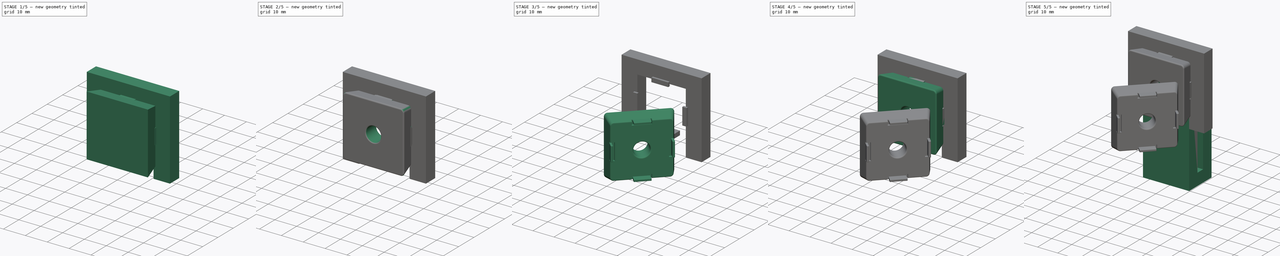
[diagram: build sequence overview — one tinted view per stage of 5, left to right]
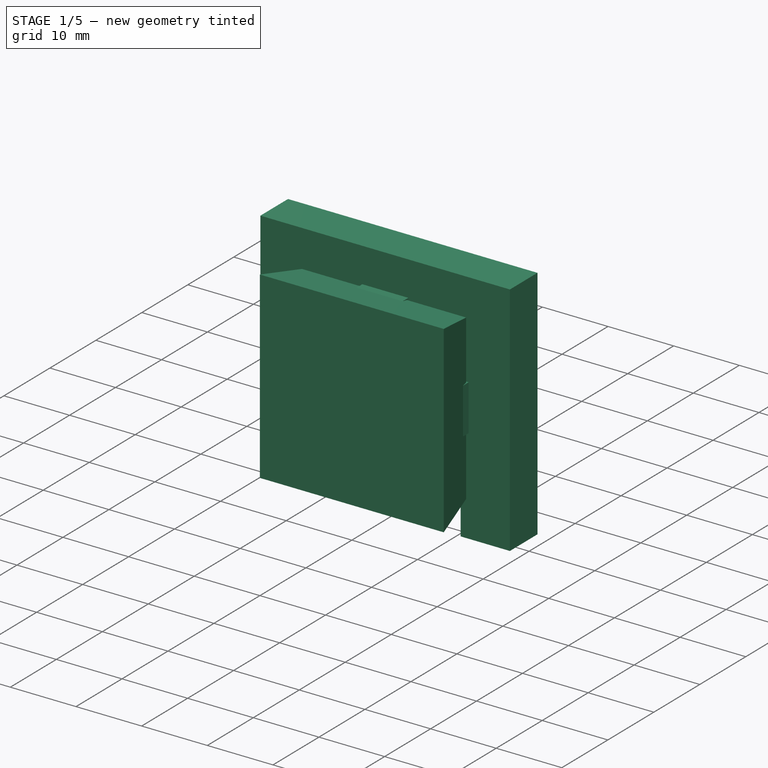
[diagram: stage 1 of 5 — iso view after this stage's code; geometry added in this stage tinted green]
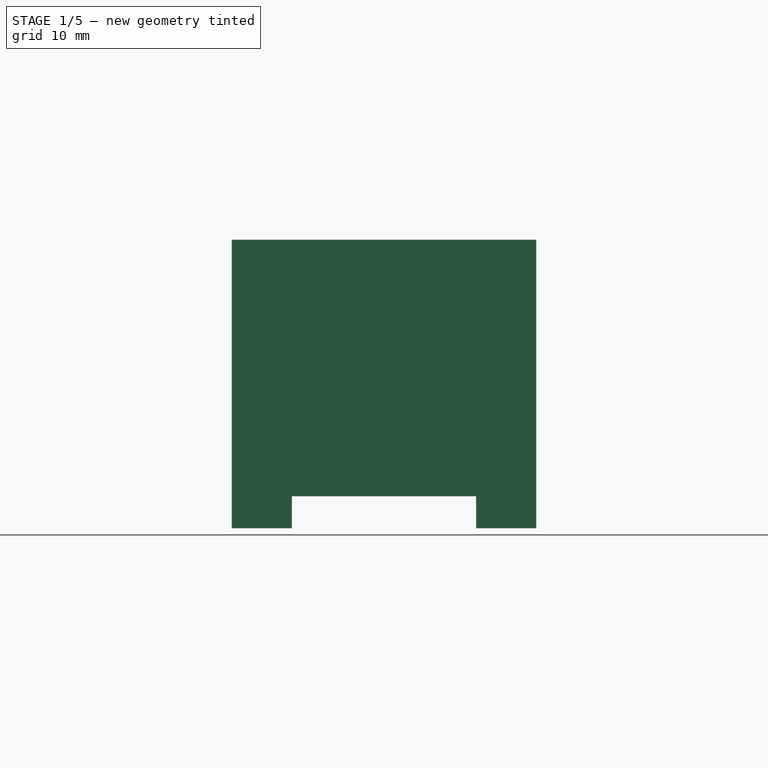
[diagram: stage 1 of 5 — front view after this stage's code; geometry added in this stage tinted green]
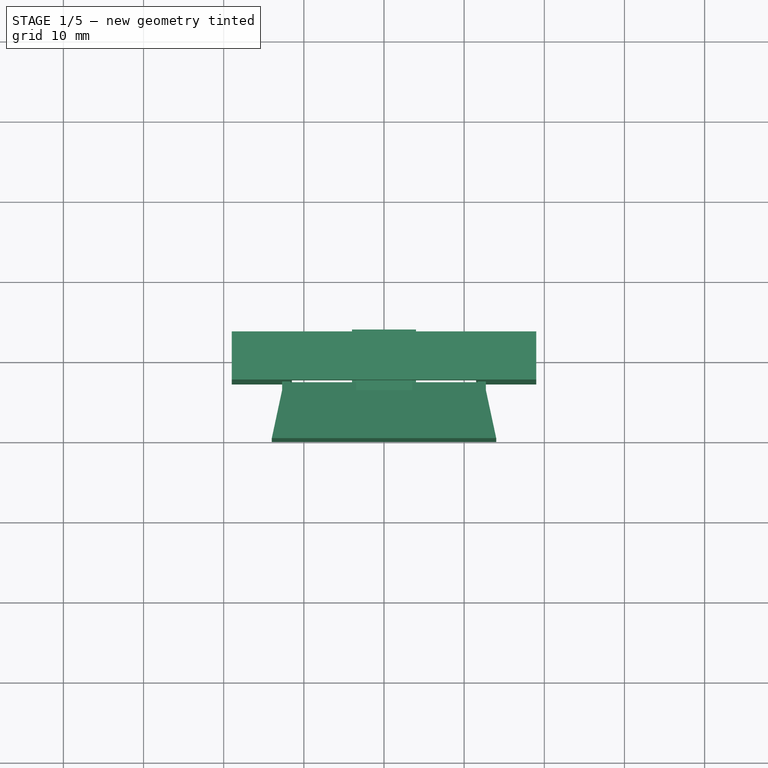
[diagram: stage 1 of 5 — top view after this stage's code; geometry added in this stage tinted green]
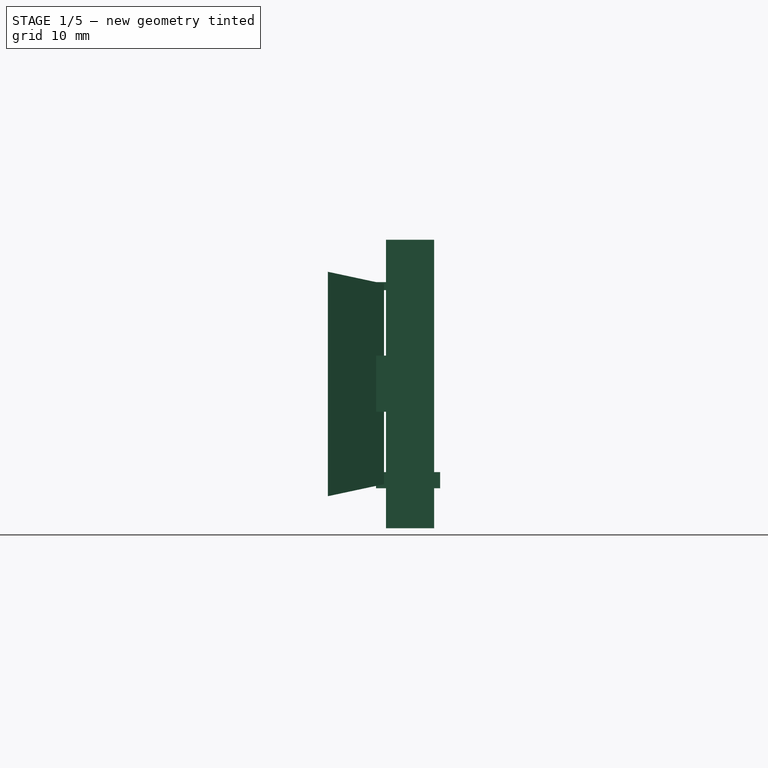
[diagram: stage 1 of 5 — right view after this stage's code; geometry added in this stage tinted green]
FCSTD DOCUMENT  (FreeCAD 1.0R39109 (Git))
Label: T-slot_Mount
License: All rights reserved
LicenseURL: https://en.wikipedia.org/wiki/All_rights_reserved
objects: Part::Box×21, Part::Feature×10, Part::MultiFuse×7, Part::Cut×6, Part::Fillet×4, Part::Cylinder×3, Part::Wedge×2, App::Part×2, Sketcher::SketchObject×1, Part::Extrusion×1
note: 56 computed .brp shape members not serialized (recipe doc carries the construction recipe); baked Part::Feature solids carry a one-line shape summary decoded from their .brp

FEATURE [Part::Box] Box014  label="Cube014"
  AttacherType = Attacher::AttachEngine3D
  Height = 1
  Length = 7
  Placement = pos=(-3.48,6,11.71) rot=(0,0,1;0rad)
  Width = 3
FEATURE [Part::Box] Box015  label="Cube015"
  AttacherType = Attacher::AttachEngine3D
  Height = 1
  Length = 7
  Placement = pos=(-3.48,6,-12.71) rot=(0,0,1;0rad)
  Width = 3
FEATURE [Part::Box] Box016  label="Cube016"
  AttacherType = Attacher::AttachEngine3D
  Height = 1
  Length = 7
  Placement = pos=(-11.71,6,-3.46) rot=(0,1,0;4.71239rad)
  Width = 3
FEATURE [Part::Box] Box017  label="Cube017"
  AttacherType = Attacher::AttachEngine3D
  Height = 1
  Length = 7
  Placement = pos=(12.71,6,-3.46) rot=(0,1,0;4.71239rad)
  Width = 3
FEATURE [Part::Wedge] Wedge001
  AttacherType = Attacher::AttachEngine3D
  X2max = 12.5
  X2min = -12.5
  Xmax = 14
  Xmin = -14
  Ymax = 7
  Ymin = 0
  Z2max = 12.5
  Z2min = -12.5
  Zmax = 14
  Zmin = -14
FEATURE [Part::Feature] Part__Feature011  label="4658N12_T-Slotted Framing Rail"
  Placement = pos=(-124.097,-138.946,0) rot=(0,0,1;3.92699rad)
  shape: bbox 233.5 x 233.5 x 25.4 mm, 88 faces (baked)
FEATURE [Part::Feature] Part__Feature012  label="47065T221_T-Slotted Framing"
  shape: bbox 4.244 x 18.55 x 18.55 mm, 11 faces (baked)
FEATURE [Part::Feature] Part__Feature013  label="47065T221_T-Slotted Framing001"
  shape: bbox 32.39 x 7.001 x 7.001 mm, 34 faces (baked)
FEATURE [Part::Feature] Part__Feature014  label="47065T221_T-Slotted Framing002"
  shape: bbox 28.04 x 41.2 x 41.2 mm, 176 faces (baked)
FEATURE [Part::Feature] Part__Feature015  label="47065T221_T-Slotted Framing003"
  shape: bbox 30.14 x 35.23 x 50.07 mm, 166 faces (baked)
FEATURE [Part::Feature] Part__Feature016  label="47065T221_T-Slotted Framing004"
  shape: bbox 28.04 x 39.65 x 30.31 mm, 176 faces (baked)
FEATURE [Part::Feature] Part__Feature017  label="47065T221_T-Slotted Framing005"
  shape: bbox 4.244 x 18.55 x 18.55 mm, 11 faces (baked)
FEATURE [Part::Feature] Part__Feature018  label="47065T221_T-Slotted Framing006"
  shape: bbox 0.35 x 21.6 x 21.6 mm, 6 faces (baked)
FEATURE [Part::Feature] Part__Feature019  label="47065T221_T-Slotted Framing007"
  shape: bbox 0.35 x 21.6 x 21.6 mm, 6 faces (baked)
FEATURE [Part::Feature] Part__Feature020  label="47065T221_T-Slotted Framing008"
  shape: bbox 8.33 x 10.18 x 10.18 mm, 26 faces (baked)
FEATURE [App::Part] _7065T221_T_Slotted_Framing  label="47065T221_T-Slotted Framing009"
  Group = -> [Part__Feature012,Part__Feature013,Part__Feature014,Part__Feature015,Part__Feature016,Part__Feature017,Part__Feature018,Part__Feature019,Part__Feature020]
  Origin = -> Origin002
  Placement = pos=(-1.8e-15,-15,0) rot=(-0.707107,0,-0.707107;3.14159rad)
FEATURE [App::Part] Part  label="Tslot"
  Group = -> [Cut001,Fusion002,Fillet,Cut,Box001,Box004,Box003,Box007,Box002,Box005,Box006,Fusion001,Wedge,Cylinder,Box,Fusion,Fillet001,Cut003,Fusion004,Fillet003,Cut004,Fusion006,Fusion005,Cylinder002,Wedge001,Box012,Box010,Box011,Box014,Box017,Box013,Box016,Box015,Fillet004,Part__Feature011,_7065T221_T_Slotted_Framing]
  Origin = -> Origin001
FEATURE [Part::Box] Box018  label="Cube018"
  AttacherType = Attacher::AttachEngine3D
  Height = 36
  Length = 38
  Placement = pos=(-19,7.25,-18) rot=(0,0,1;0rad)
  Width = 6
FEATURE [Part::Box] Box019  label="Cube019"
  AttacherType = Attacher::AttachEngine3D
  Height = 29.5
  Length = 23
  Placement = pos=(-11.5,7.25,-18) rot=(0,0,1;0rad)
  Width = 6
FEATURE [Part::Cut] Cut005
  Base = -> Box018
  Refine = true
  Tool = -> Box019
FEATURE [Part::Box] Box020  label="Cube020"
  AttacherType = Attacher::AttachEngine3D
  Height = 2
  Length = 8
  Placement = pos=(-4,6,-13) rot=(0,0,1;0rad)
  Width = 8
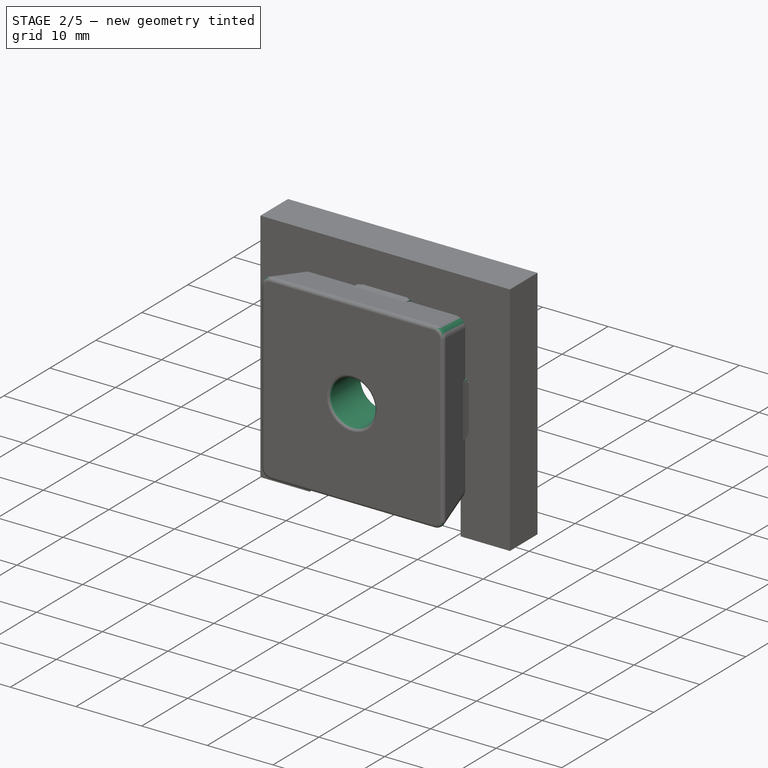
[diagram: stage 2 of 5 — iso view after this stage's code; geometry added in this stage tinted green]
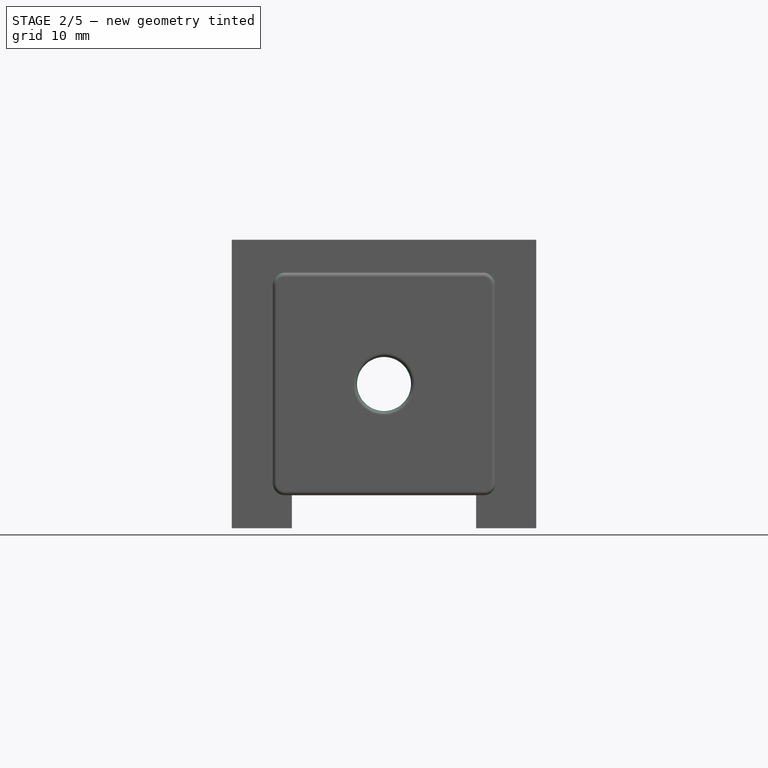
[diagram: stage 2 of 5 — front view after this stage's code; geometry added in this stage tinted green]
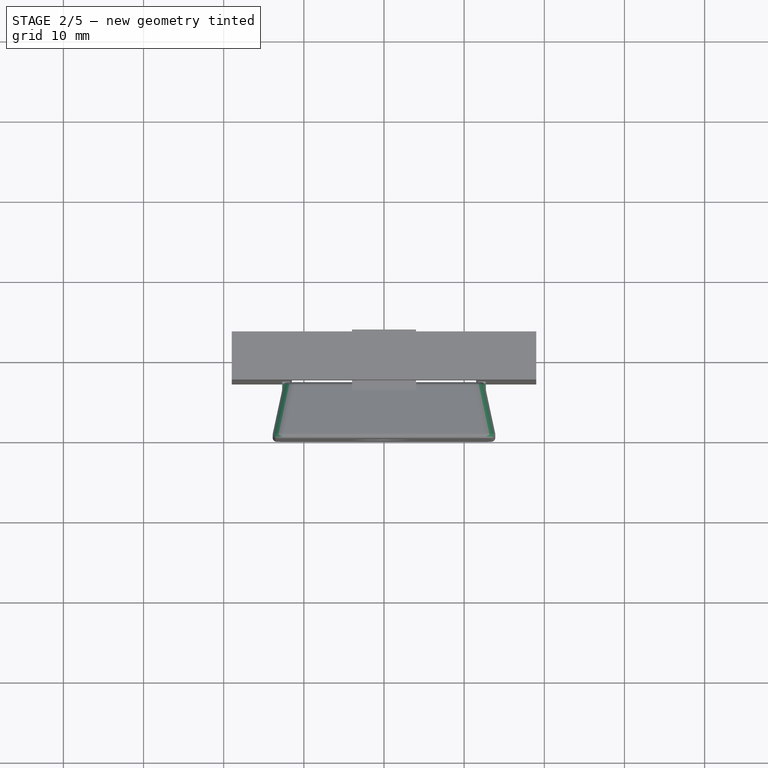
[diagram: stage 2 of 5 — top view after this stage's code; geometry added in this stage tinted green]
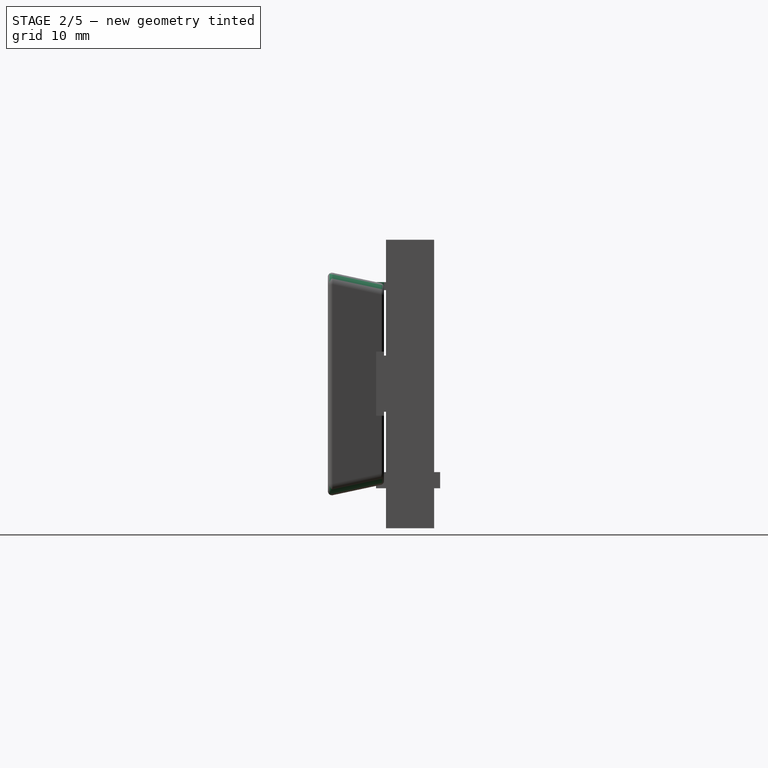
[diagram: stage 2 of 5 — right view after this stage's code; geometry added in this stage tinted green]
FEATURE [Part::Box] Box010  label="Cube010"
  AttacherType = Attacher::AttachEngine3D
  Height = 2
  Length = 8
  Placement = pos=(-3.98,6,10.71) rot=(0,0,1;0rad)
  Width = 1
FEATURE [Part::Box] Box011  label="Cube011"
  AttacherType = Attacher::AttachEngine3D
  Height = 2
  Length = 8
  Placement = pos=(-3.98,6,-12.71) rot=(0,0,1;0rad)
  Width = 1
FEATURE [Part::Box] Box012  label="Cube012"
  AttacherType = Attacher::AttachEngine3D
  Height = 2
  Length = 8
  Placement = pos=(-10.71,6,-3.96) rot=(0,1,0;4.71239rad)
  Width = 1
FEATURE [Part::Box] Box013  label="Cube013"
  AttacherType = Attacher::AttachEngine3D
  Height = 2
  Length = 8
  Placement = pos=(12.71,6,-3.96) rot=(0,1,0;4.71239rad)
  Width = 1
FEATURE [Part::Cylinder] Cylinder002
  Angle = 360
  AttacherType = Attacher::AttachEngine3D
  FirstAngle = 0
  Height = 10
  Placement = pos=(0,8,1.8e-15) rot=(1,0,0;1.5708rad)
  Radius = 3.3725
  SecondAngle = 0
FEATURE [Part::MultiFuse] Fusion004  label="Gap001"
  Refine = true
  Shapes = -> [Box010,Box011,Box012,Box013]
FEATURE [Part::MultiFuse] Fusion005  label="extensions001"
  Refine = true
  Shapes = -> [Box014,Box015,Box016,Box017]
FEATURE [Part::Cut] Cut003  label="Slot_Base001"
  Base = -> Wedge001
  Refine = true
  Tool = -> Cylinder002
FEATURE [Part::Fillet] Fillet003
  Base = -> Cut003
  EdgeLinks = -> Cut003 [Edge1,Edge2,Edge3,Edge4,Edge5,Edge6,Edge7,Edge8,Edge9,Edge10,Edge11,Edge12,Edge13,Edge14]
  Edges = 14 edges: [Edge1 r=0.5,Edge2 r=1.5,Edge3 r=0.5,Edge4 r=1.5,Edge5 r=0.5,Edge6 r=0.5,Edge7 r=0.5,Edge8 r=0.5,Edge9 r=0.5,Edge10 r=1.5,Edge11 r=0.5,Edge12 r=0.5,Edge13 r=0.5,Edge14 r=1.5]
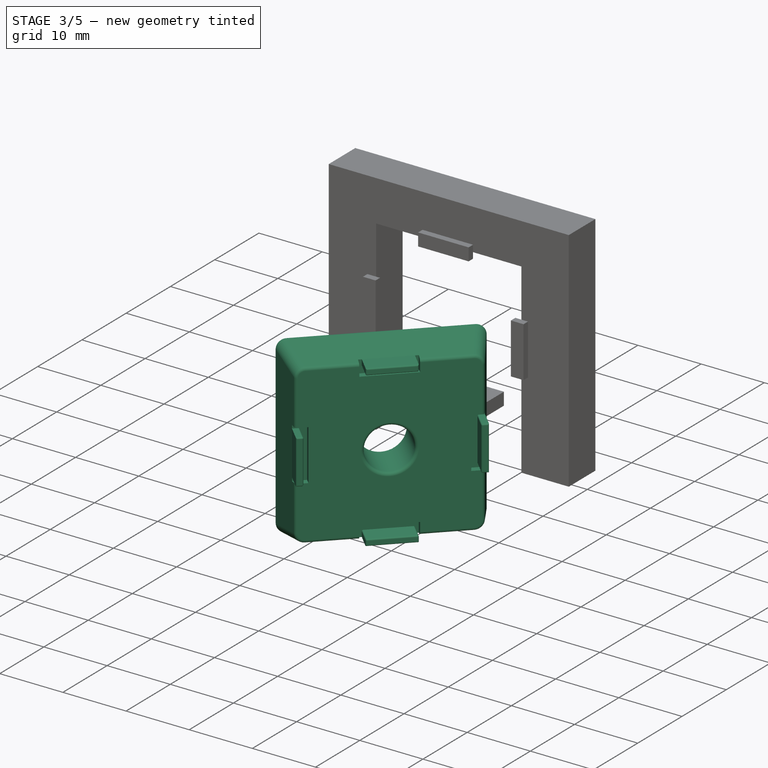
[diagram: stage 3 of 5 — iso view after this stage's code; geometry added in this stage tinted green]
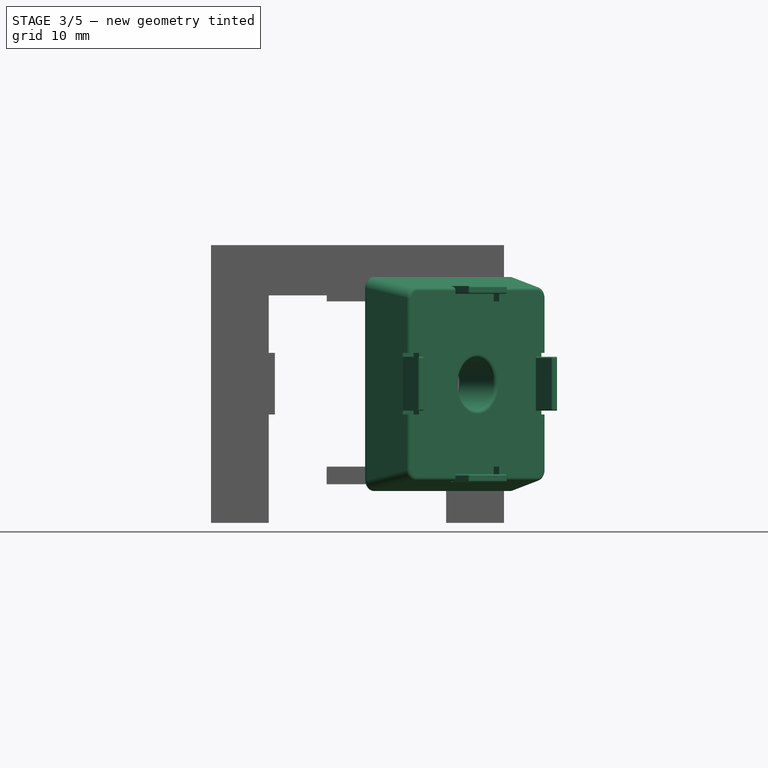
[diagram: stage 3 of 5 — front view after this stage's code; geometry added in this stage tinted green]
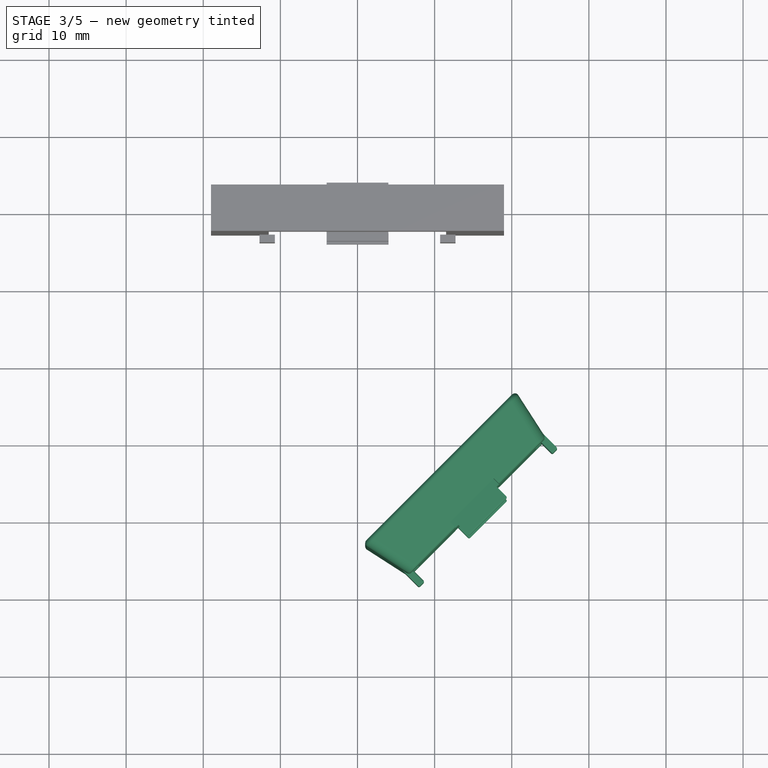
[diagram: stage 3 of 5 — top view after this stage's code; geometry added in this stage tinted green]
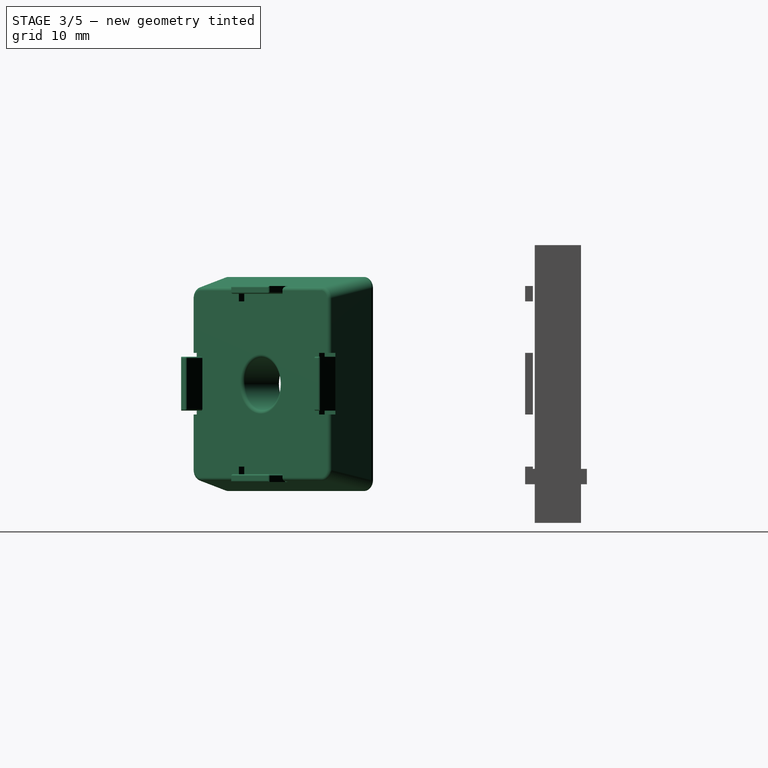
[diagram: stage 3 of 5 — right view after this stage's code; geometry added in this stage tinted green]
FEATURE [Part::Box] Box  label="Cube"
  AttacherType = Attacher::AttachEngine3D
  Height = 2
  Length = 8
  Placement = pos=(-3.98,6,10.71) rot=(0,0,1;0rad)
  Width = 1
FEATURE [Part::Box] Box001  label="Cube001"
  AttacherType = Attacher::AttachEngine3D
  Height = 2
  Length = 8
  Placement = pos=(-3.98,6,-12.71) rot=(0,0,1;0rad)
  Width = 1
FEATURE [Part::Box] Box002  label="Cube002"
  AttacherType = Attacher::AttachEngine3D
  Height = 2
  Length = 8
  Placement = pos=(-10.71,6,-3.96) rot=(0,1,0;4.71239rad)
  Width = 1
FEATURE [Part::Box] Box003  label="Cube003"
  AttacherType = Attacher::AttachEngine3D
  Height = 2
  Length = 8
  Placement = pos=(12.71,6,-3.96) rot=(0,1,0;4.71239rad)
  Width = 1
FEATURE [Part::MultiFuse] Fusion  label="Gap"
  Refine = true
  Shapes = -> [Box,Box001,Box002,Box003]
FEATURE [Part::Cut] Cut004
  Base = -> Fillet003
  Refine = true
  Tool = -> Fusion004
FEATURE [Part::MultiFuse] Fusion006  label="Mount_Base001"
  Refine = true
  Shapes = -> [Fusion005,Cut004]
FEATURE [Part::Fillet] Fillet004  label="Base001"
  Base = -> Fusion006
  EdgeLinks = -> Fusion006 [Edge4,Edge5,Edge15,Edge18,Edge19,Edge20,Edge173,Edge177,Edge183,Edge185,Edge186,Edge187,Edge188,Edge189,Edge190,Edge191,Edge192,Edge193,Edge194,Edge195,Edge196,Edge197,Edge198,Edge199]
  Edges = 24 edges r=0.2: [Edge4,Edge5,Edge15,Edge18,Edge19,Edge20,Edge173,Edge177,Edge183,Edge185,Edge186,Edge187,Edge188,Edge189,Edge190,Edge191,Edge192,Edge193,Edge194,Edge195,Edge196,Edge197,Edge198,Edge199]
  Placement = pos=(10.6066,-23.3345,0) rot=(0,0,1;3.92699rad)
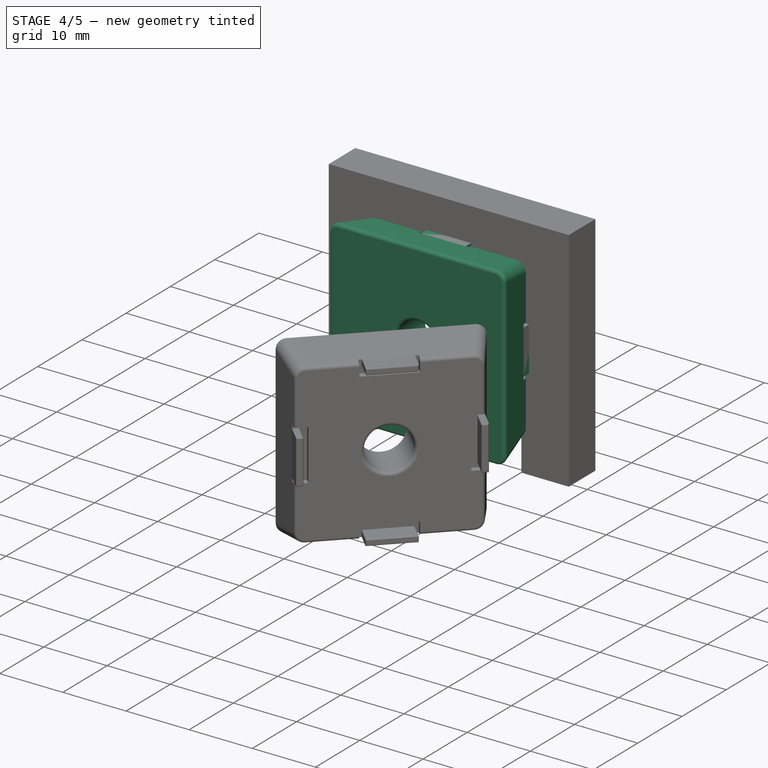
[diagram: stage 4 of 5 — iso view after this stage's code; geometry added in this stage tinted green]
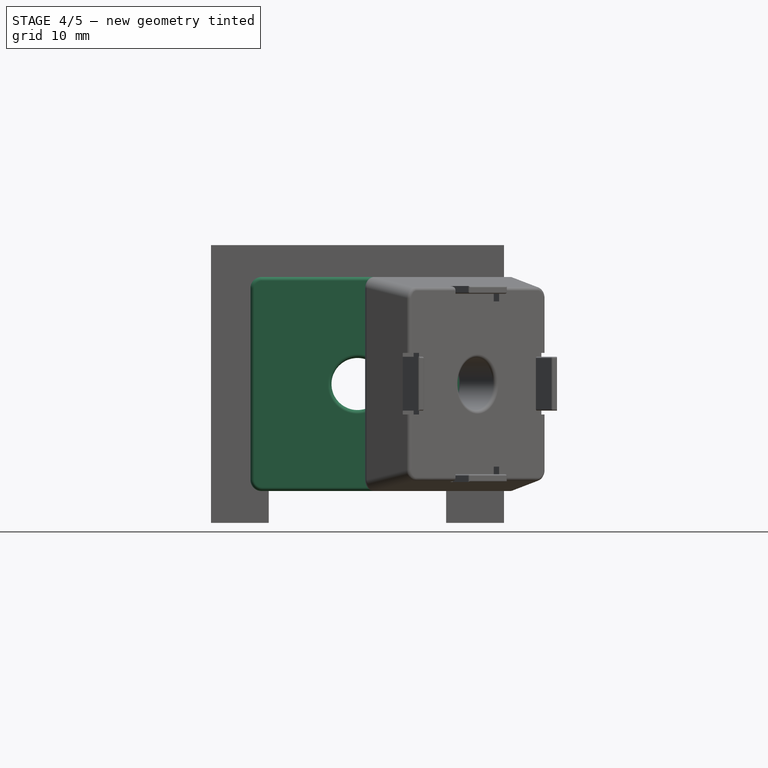
[diagram: stage 4 of 5 — front view after this stage's code; geometry added in this stage tinted green]
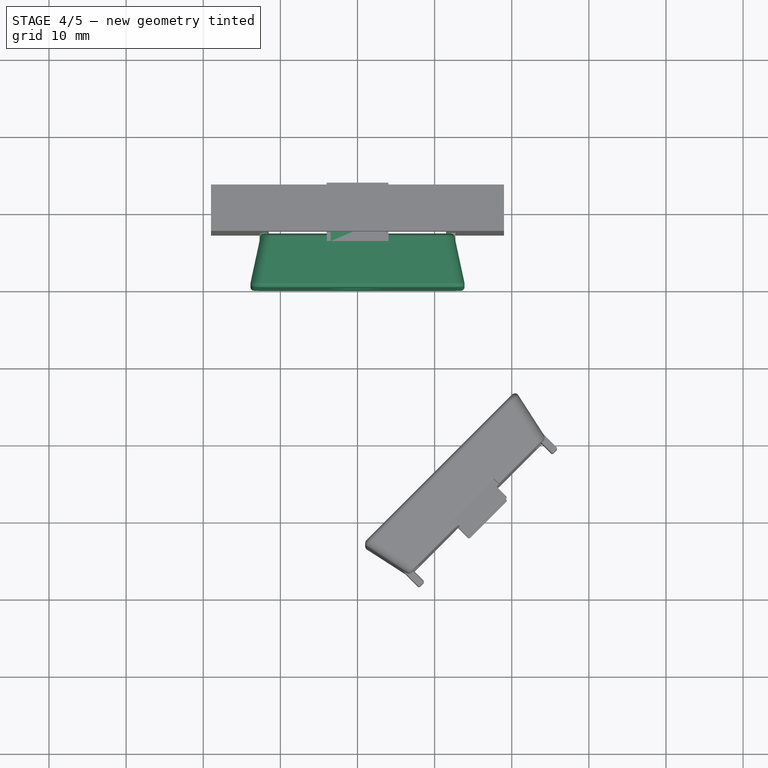
[diagram: stage 4 of 5 — top view after this stage's code; geometry added in this stage tinted green]
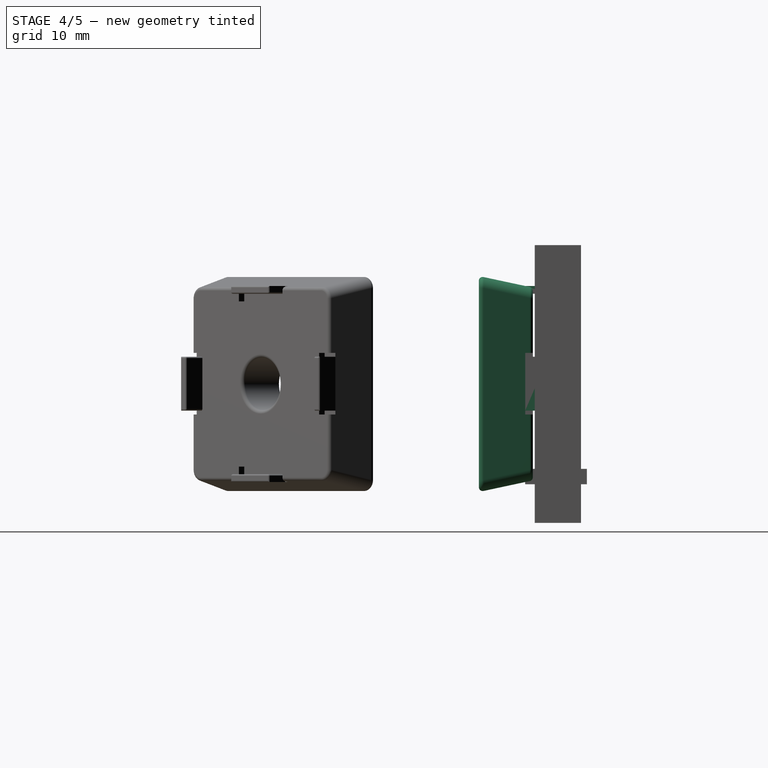
[diagram: stage 4 of 5 — right view after this stage's code; geometry added in this stage tinted green]
FEATURE [Part::Wedge] Wedge
  AttacherType = Attacher::AttachEngine3D
  X2max = 12.5
  X2min = -12.5
  Xmax = 14
  Xmin = -14
  Ymax = 7
  Ymin = 0
  Z2max = 12.5
  Z2min = -12.5
  Zmax = 14
  Zmin = -14
FEATURE [Part::Cylinder] Cylinder
  Angle = 360
  AttacherType = Attacher::AttachEngine3D
  FirstAngle = 0
  Height = 10
  Placement = pos=(0,8,1.8e-15) rot=(1,0,0;1.5708rad)
  Radius = 3.3725
  SecondAngle = 0
FEATURE [Part::Cut] Cut  label="Slot_Base"
  Base = -> Wedge
  Refine = true
  Tool = -> Cylinder
FEATURE [Part::Fillet] Fillet
  Base = -> Cut
  EdgeLinks = -> Cut [Edge1,Edge2,Edge3,Edge4,Edge5,Edge6,Edge7,Edge8,Edge9,Edge10,Edge11,Edge12,Edge13,Edge14]
  Edges = 14 edges: [Edge1 r=0.5,Edge2 r=1.5,Edge3 r=0.5,Edge4 r=1.5,Edge5 r=0.5,Edge6 r=0.5,Edge7 r=0.5,Edge8 r=0.5,Edge9 r=0.5,Edge10 r=1.5,Edge11 r=0.5,Edge12 r=0.5,Edge13 r=0.5,Edge14 r=1.5]
FEATURE [Part::Box] Box004  label="Cube004"
  AttacherType = Attacher::AttachEngine3D
  Height = 1
  Length = 7
  Placement = pos=(-3.48,6,11.71) rot=(0,0,1;0rad)
  Width = 3
FEATURE [Part::Box] Box005  label="Cube005"
  AttacherType = Attacher::AttachEngine3D
  Height = 1
  Length = 7
  Placement = pos=(-3.48,6,-12.71) rot=(0,0,1;0rad)
  Width = 3
FEATURE [Part::Box] Box006  label="Cube006"
  AttacherType = Attacher::AttachEngine3D
  Height = 1
  Length = 7
  Placement = pos=(-11.71,6,-3.46) rot=(0,1,0;4.71239rad)
  Width = 3
FEATURE [Part::Box] Box007  label="Cube007"
  AttacherType = Attacher::AttachEngine3D
  Height = 1
  Length = 7
  Placement = pos=(12.71,6,-3.46) rot=(0,1,0;4.71239rad)
  Width = 3
FEATURE [Part::Cut] Cut001
  Base = -> Fillet
  Refine = true
  Tool = -> Fusion
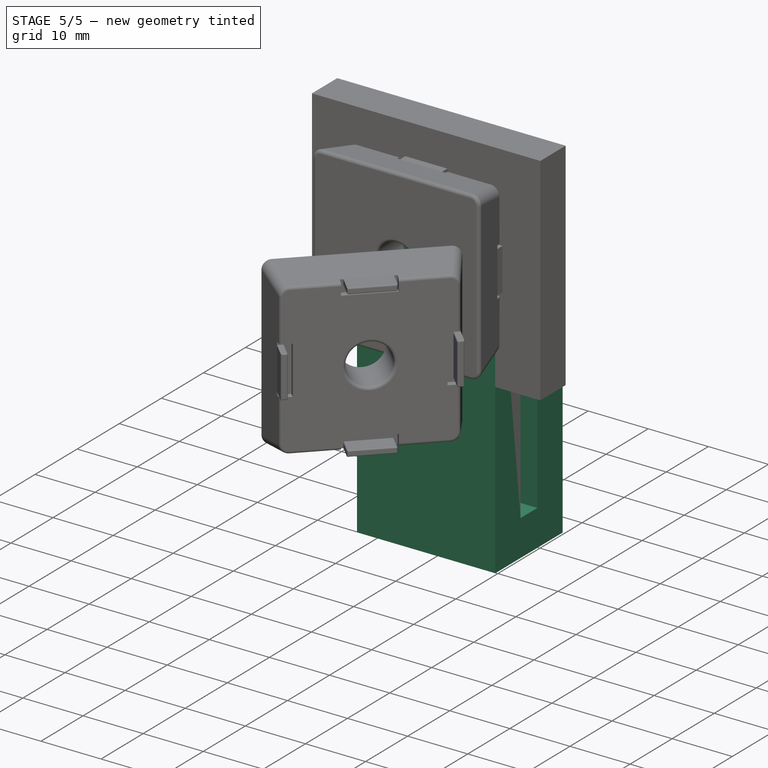
[diagram: stage 5 of 5 — iso view after this stage's code; geometry added in this stage tinted green]
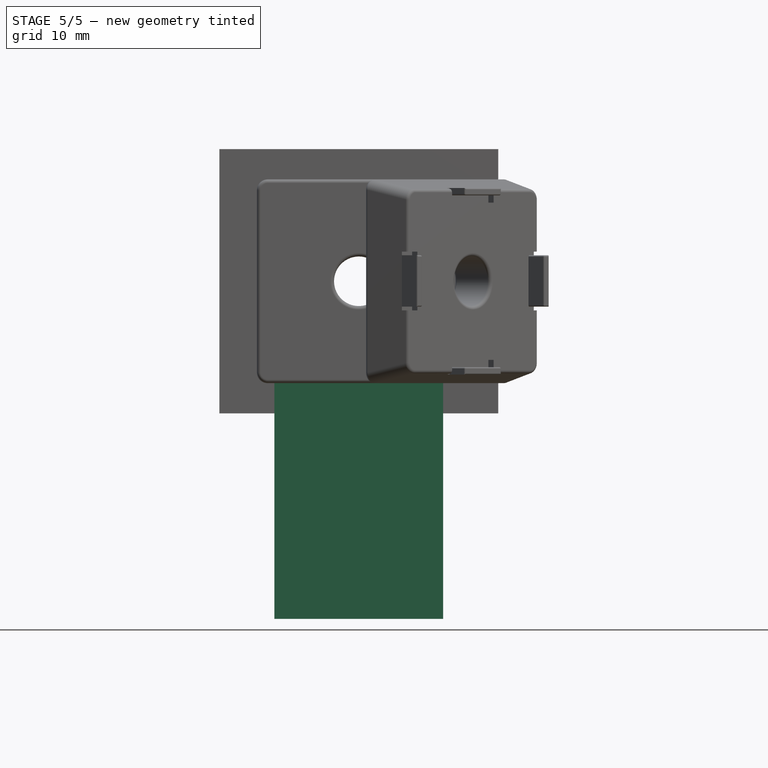
[diagram: stage 5 of 5 — front view after this stage's code; geometry added in this stage tinted green]
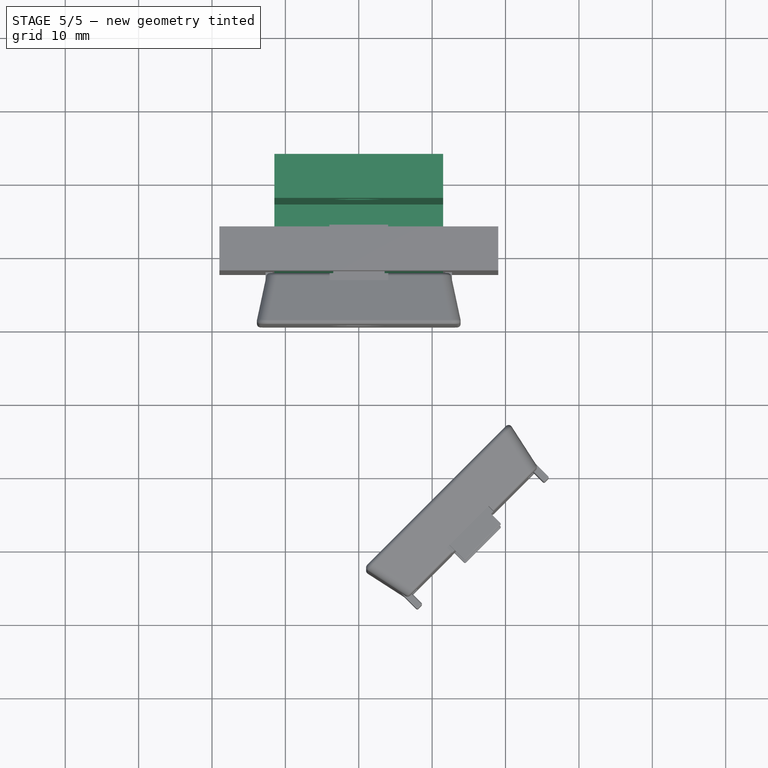
[diagram: stage 5 of 5 — top view after this stage's code; geometry added in this stage tinted green]
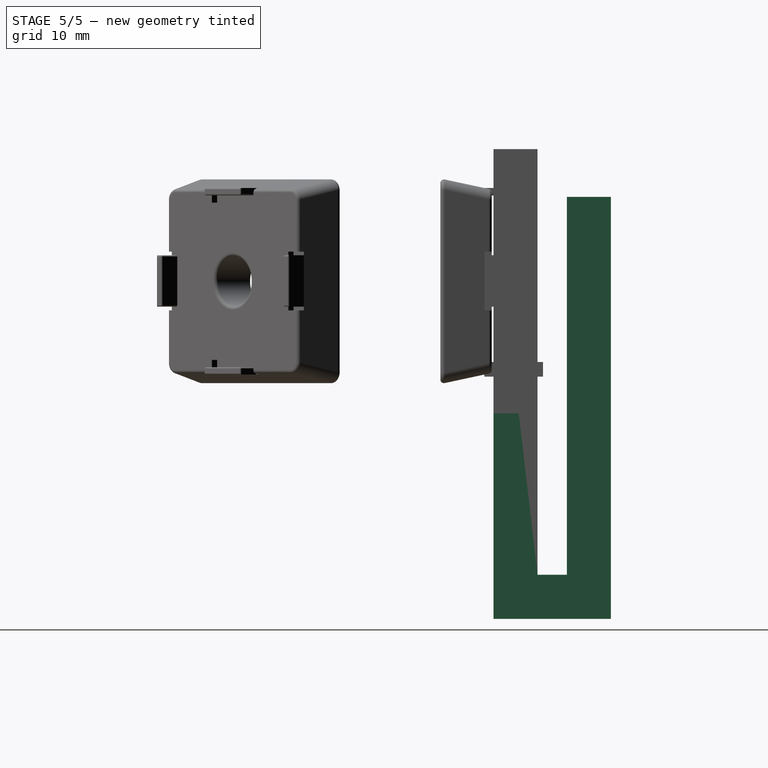
[diagram: stage 5 of 5 — right view after this stage's code; geometry added in this stage tinted green]
FEATURE [Part::MultiFuse] Fusion001  label="extensions"
  Refine = true
  Shapes = -> [Box004,Box005,Box006,Box007]
FEATURE [Part::MultiFuse] Fusion002  label="Mount_Base"
  Refine = true
  Shapes = -> [Fusion001,Cut001]
FEATURE [Part::Fillet] Fillet001  label="Base"
  Base = -> Fusion002
  EdgeLinks = -> Fusion002 [Edge4,Edge5,Edge15,Edge18,Edge19,Edge20,Edge173,Edge177,Edge183,Edge185,Edge186,Edge187,Edge188,Edge189,Edge190,Edge191,Edge192,Edge193,Edge194,Edge195,Edge196,Edge197,Edge198,Edge199]
  Edges = 24 edges r=0.2: [Edge4,Edge5,Edge15,Edge18,Edge19,Edge20,Edge173,Edge177,Edge183,Edge185,Edge186,Edge187,Edge188,Edge189,Edge190,Edge191,Edge192,Edge193,Edge194,Edge195,Edge196,Edge197,Edge198,Edge199]
FEATURE [Sketcher::SketchObject] Sketch
  ArcFitTolerance = 1e-06
  FullyConstrained = true
  MakeInternals = false
  Placement = pos=(0,0,0) rot=(0,0.707107,0.707107;3.14159rad)
  sketch-geometry (8):
    g0: LineSegment StartX=-11.5 StartY=11.5 StartZ=0 EndX=-11.5 EndY=-40 EndZ=0
    g1: LineSegment StartX=-11.5 StartY=-40 StartZ=0 EndX=11.5 EndY=-40 EndZ=0
    g2: LineSegment StartX=11.5 StartY=-40 StartZ=0 EndX=11.5 EndY=11.5 EndZ=0
    g3: LineSegment StartX=11.5 StartY=11.5 StartZ=0 EndX=-11.5 EndY=11.5 EndZ=0
    g4: LineSegment StartX=-4 StartY=-11 StartZ=0 EndX=-4 EndY=-13 EndZ=0
    g5: LineSegment StartX=-4 StartY=-13 StartZ=0 EndX=4 EndY=-13 EndZ=0
    g6: LineSegment StartX=4 StartY=-13 StartZ=0 EndX=4 EndY=-11 EndZ=0
    g7: LineSegment StartX=4 StartY=-11 StartZ=0 EndX=-4 EndY=-11 EndZ=0
  constraints (22):
    c: Coincident(g0,g1)
    c: Coincident(g1,g2)
    c: Coincident(g2,g3)
    c: Coincident(g3,g0)
    c: Vertical(g0)
    c: Vertical(g2)
    c: Horizontal(g1)
    c: DistanceX(g3,g3) = 23
    c: Symmetric(g0,g2,g-2)
    c: DistanceY(g-1,g0) = 11.5
    c: DistanceY(g0,g0) = 51.5
    c: Coincident(g4,g5)
    c: Coincident(g5,g6)
    c: Coincident(g6,g7)
    c: Coincident(g7,g4)
    c: Vertical(g4)
    c: Vertical(g6)
    c: Horizontal(g5)
    c: DistanceX(g7,g7) = 8
    c: Symmetric(g4,g6,g-2)
    c: DistanceY(g4,g4) = 2
    c: DistanceY(g4,g-1) = 13
FEATURE [Part::Extrusion] Extrude  label="Base_MountPlate"
  Base = -> Sketch
  Dir = (0,1,-2e-16)
  DirMode = 2
  FaceMakerClass = Part::FaceMakerBullseye
  FaceMakerMode = 3
  LengthFwd = 6
  LengthRev = 0
  Placement = pos=(0,7.25,0) rot=(0,0,1;0rad)
  Solid = true
  Symmetric = false
FEATURE [Part::Box] Box008  label="Cube008"
  AttacherType = Attacher::AttachEngine3D
  Height = 6
  Length = 23
  Placement = pos=(-11.5,7.25,-46) rot=(0,0,1;0rad)
  Width = 16
FEATURE [Part::Box] Box009  label="Cube009"
  AttacherType = Attacher::AttachEngine3D
  Height = 6
  Length = 23
  Placement = pos=(-11.5,17.25,11.5) rot=(1,0,0;4.71239rad)
  Width = 57.5
FEATURE [Part::MultiFuse] Fusion003  label="MOunt_plate"
  Refine = true
  Shapes = -> [Extrude,Box008,Box009]
FEATURE [Part::Cylinder] Cylinder001
  Angle = 360
  AttacherType = Attacher::AttachEngine3D
  FirstAngle = 0
  Height = 30
  Placement = pos=(0,30,1.8e-15) rot=(1,0,0;1.5708rad)
  Radius = 3.3725
  SecondAngle = 0
FEATURE [Part::Cut] Cut002  label="MountPlate"
  Base = -> Fusion003
  Refine = true
  Tool = -> Cylinder001
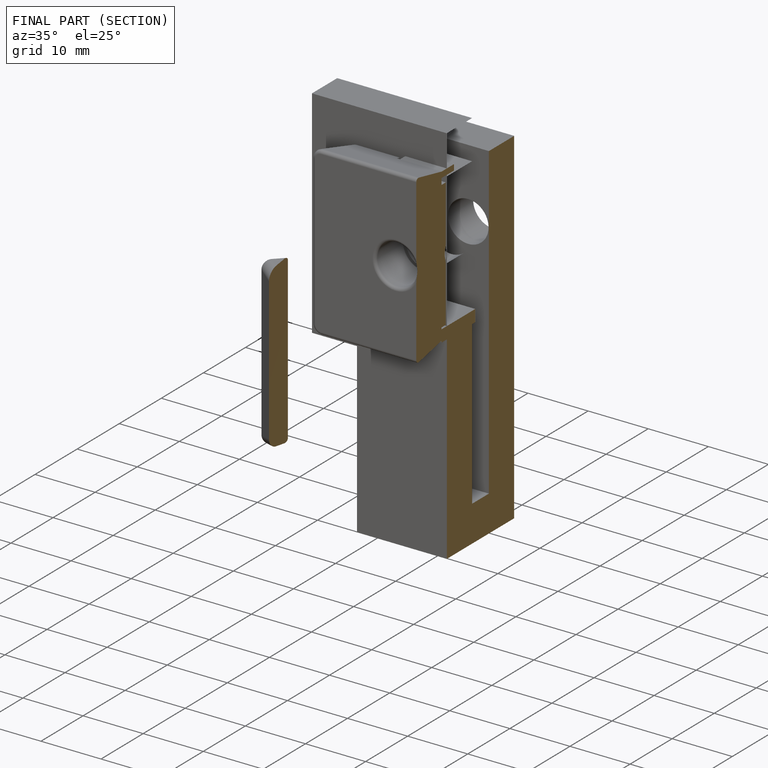
[diagram: finished part — half-section view (interior)]
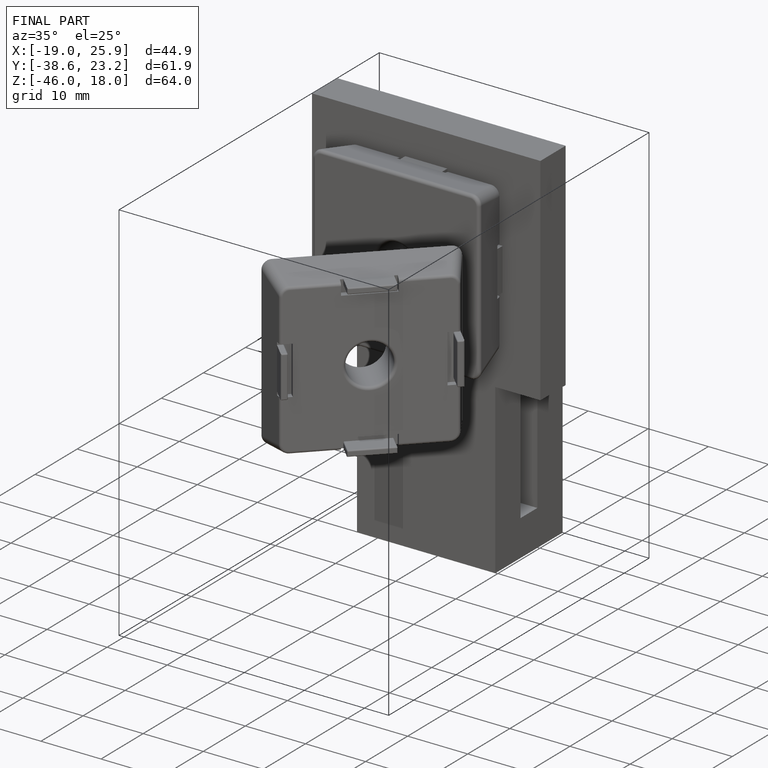
[diagram: finished part — iso view with bounding-box wireframe]
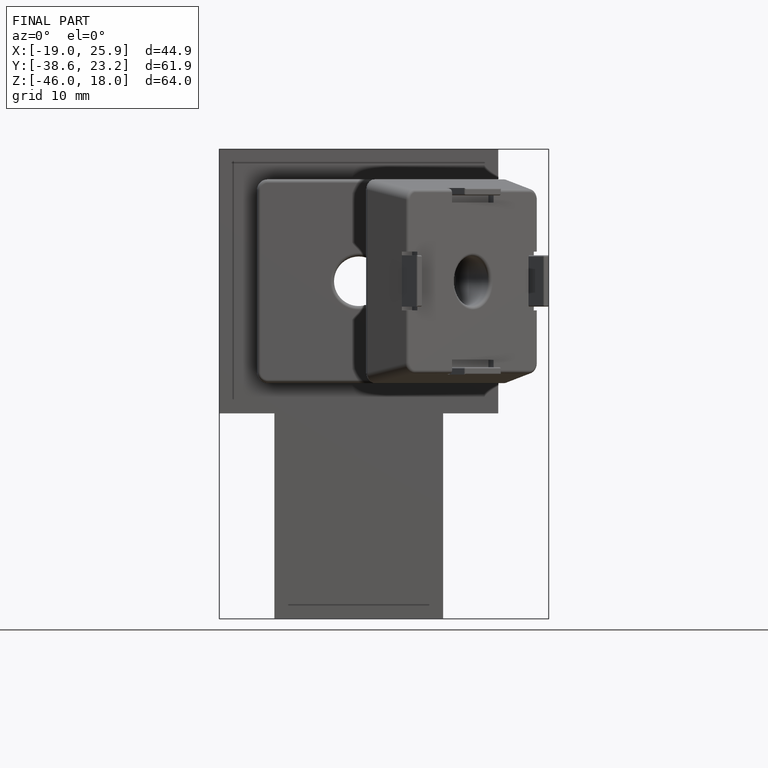
[diagram: finished part — front view with bounding-box wireframe]
